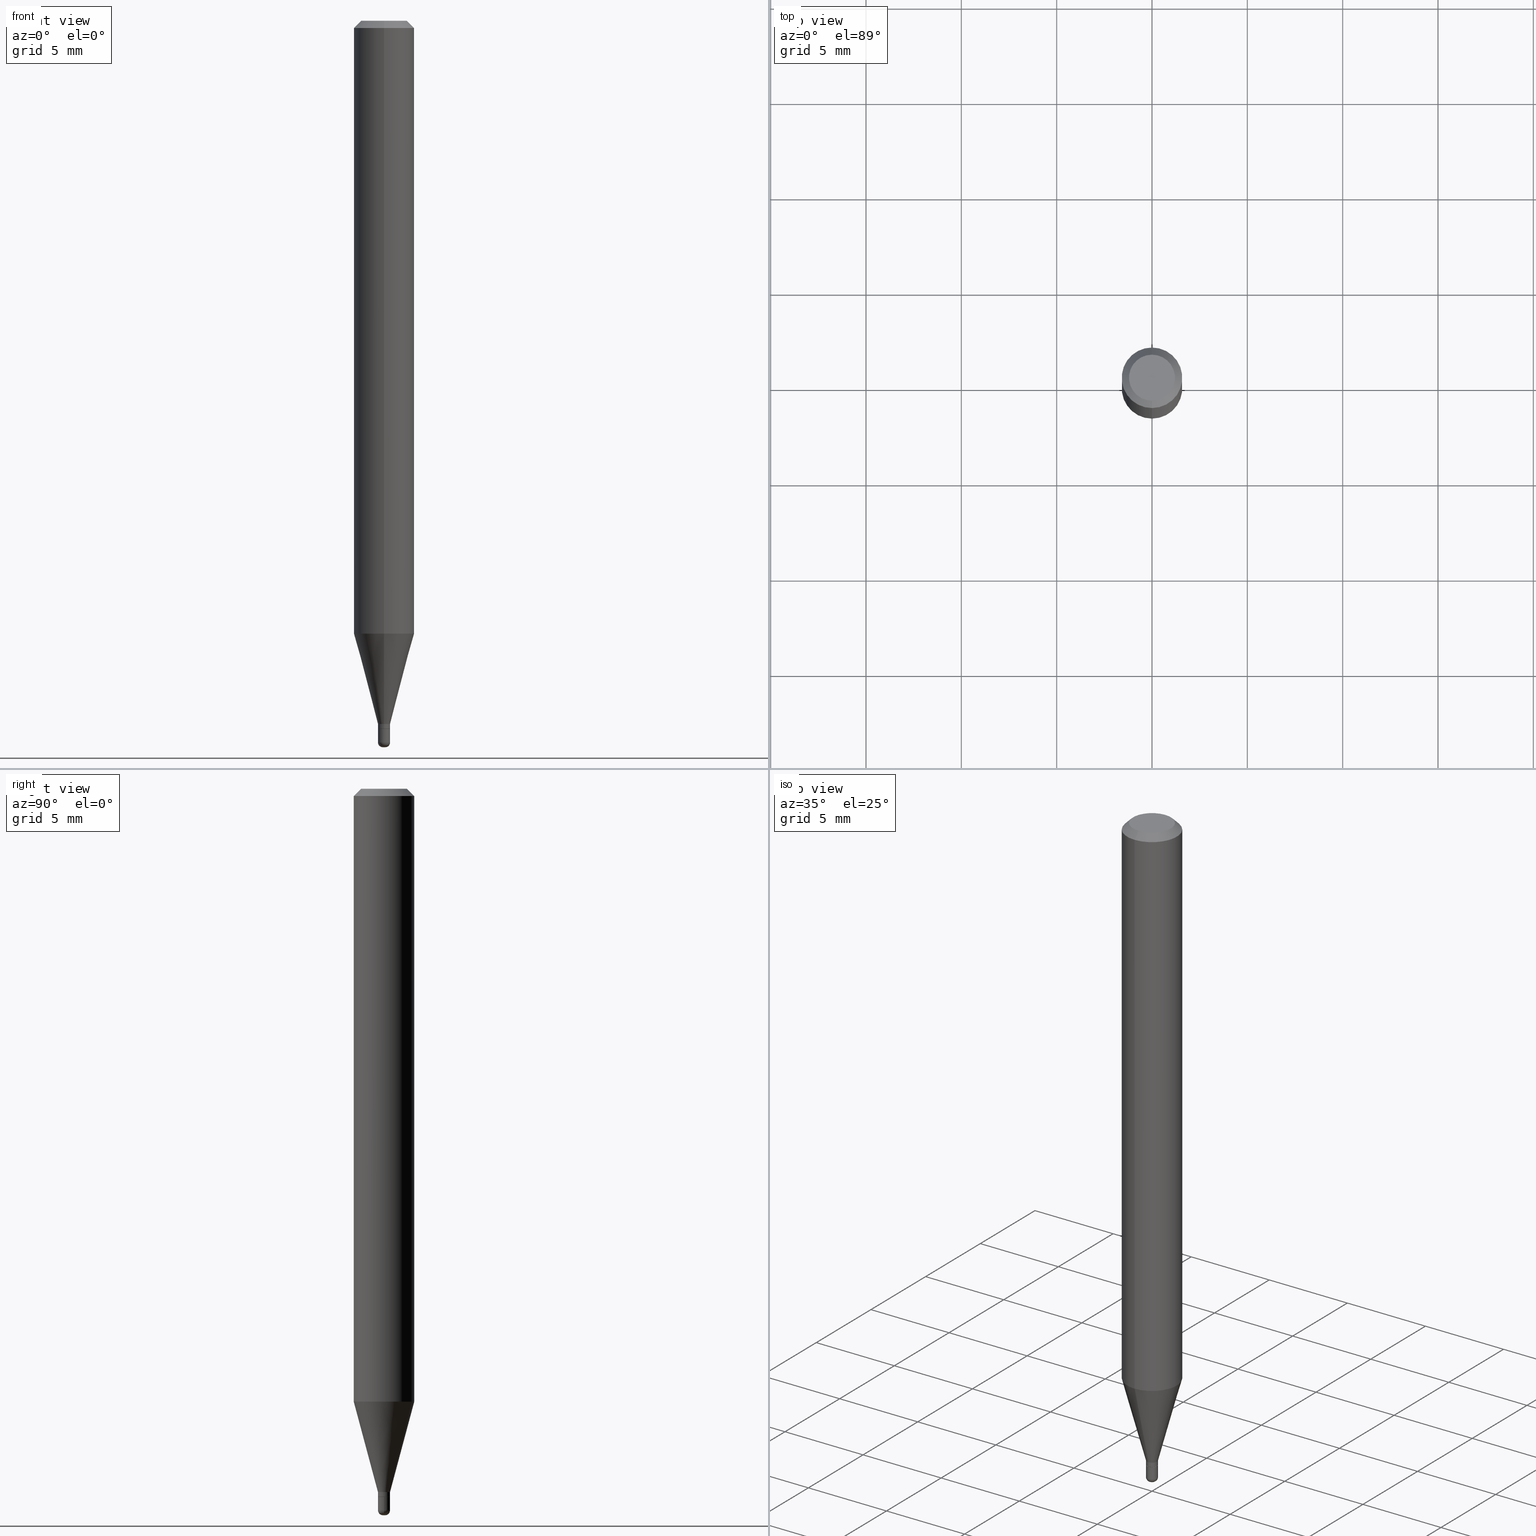
[diagram: canonical four-view strip — front | top / right | iso, engineering-drawing reading convention]
A machine part, canonical four-view strip (front | top / right | iso — engineering-drawing reading convention). The complete STEP part file that produces these views, byte-faithful:
ISO-10303-21;
HEADER;
FILE_DESCRIPTION (( 'STEP AP203' ),
    '1' );
FILE_NAME ('08990.STEP',
    '2024-02-29T21:05:07',
    ( '' ),
    ( '' ),
    'SwSTEP 2.0',
    'SolidWorks 2023',
    '' );
FILE_SCHEMA (( 'CONFIG_CONTROL_DESIGN' ));
ENDSEC;

DATA;
#1 = LINE ( 'NONE', #403, #355 ) ;
#2 = ORIENTED_EDGE ( 'NONE', *, *, #493, .T. ) ;
#3 = EDGE_CURVE ( 'NONE', #402, #494, #344, .T. ) ;
#4 = AXIS2_PLACEMENT_3D ( 'NONE', #393, #263, #195 ) ;
#5 = DIRECTION ( 'NONE',  ( -6.982962677686265922E-15, -1.000000000000000000, 3.491659503082930455E-15 ) ) ;
#6 = CC_DESIGN_SECURITY_CLASSIFICATION ( #499, ( #92 ) ) ;
#7 = VERTEX_POINT ( 'NONE', #469 ) ;
#8 = DIRECTION ( 'NONE',  ( -6.982962677686265922E-15, -1.000000000000000000, 0.000000000000000000 ) ) ;
#9 = VERTEX_POINT ( 'NONE', #20 ) ;
#10 = PERSON_AND_ORGANIZATION_ROLE ( 'design_owner' ) ;
#11 = ORIENTED_EDGE ( 'NONE', *, *, #303, .F. ) ;
#12 = CARTESIAN_POINT ( 'NONE',  ( 3.643748521215853910E-29, -5.202307194876288105E-15, -1.490000000000000213 ) ) ;
#13 = ORIENTED_EDGE ( 'NONE', *, *, #32, .F. ) ;
#14 = AXIS2_PLACEMENT_3D ( 'NONE', #428, #350, #35 ) ;
#15 = CONICAL_SURFACE ( 'NONE', #154, 0.01250000000000004580, 0.2617993877991491858 ) ;
#16 = CC_DESIGN_DATE_AND_TIME_ASSIGNMENT ( #93, #502, ( #194 ) ) ;
#17 = VERTEX_POINT ( 'NONE', #217 ) ;
#18 = CARTESIAN_POINT ( 'NONE',  ( -4.364351673553607559E-16, -0.06250000000000442701, -1.265397459621556253 ) ) ;
#19 = APPROVAL_ROLE ( '' ) ;
#20 = CARTESIAN_POINT ( 'NONE',  ( 4.440892098500936776E-16, 0.06249999999999993755, -0.01499999999999992138 ) ) ;
#21 = APPROVAL_ROLE ( '' ) ;
#22 = AXIS2_PLACEMENT_3D ( 'NONE', #276, #365, #8 ) ;
#23 = LOCAL_TIME ( 16, 5, 7.000000000000000000, #296 ) ;
#24 = CYLINDRICAL_SURFACE ( 'NONE', #241, 0.06250000000000000000 ) ;
#25 = ORIENTED_EDGE ( 'NONE', *, *, #233, .F. ) ;
#26 = SHAPE_DEFINITION_REPRESENTATION ( #305, #328 ) ;
#27 = CARTESIAN_POINT ( 'NONE',  ( 0.01250000000000004406, -8.728703347107864203E-17, 6.095220969744940761E-31 ) ) ;
#28 = AXIS2_PLACEMENT_3D ( 'NONE', #36, #199, #405 ) ;
#29 = DIRECTION ( 'NONE',  ( -2.445344394761444786E-29, 3.491659503082930455E-15, 1.000000000000000000 ) ) ;
#30 = DIRECTION ( 'NONE',  ( -2.445468806185136597E-29, 3.491481338843145583E-15, 1.000000000000000000 ) ) ;
#31 = CARTESIAN_POINT ( 'NONE',  ( -8.728703347104319259E-17, -0.01250000000000519099, -1.461999999999999522 ) ) ;
#32 = EDGE_CURVE ( 'NONE', #494, #402, #513, .T. ) ;
#33 = CONICAL_SURFACE ( 'NONE', #126, 0.01250000000000004580, 0.2617993877991491858 ) ;
#34 = AXIS2_PLACEMENT_3D ( 'NONE', #370, #282, #85 ) ;
#35 = DIRECTION ( 'NONE',  ( -6.982962677686265922E-15, -1.000000000000000000, 3.483106191921935554E-15 ) ) ;
#36 = CARTESIAN_POINT ( 'NONE',  ( 0.000000000000000000, 0.000000000000000000, 0.000000000000000000 ) ) ;
#37 = ORIENTED_EDGE ( 'NONE', *, *, #147, .F. ) ;
#38 = DIRECTION ( 'NONE',  ( -2.445468806185136597E-29, 3.491481338843145583E-15, 1.000000000000000000 ) ) ;
#39 = ORIENTED_EDGE ( 'NONE', *, *, #267, .T. ) ;
#40 = VECTOR ( 'NONE', #274, 39.37007874015748143 ) ;
#41 = DIRECTION ( 'NONE',  ( -6.982962677686265922E-15, -1.000000000000000000, 3.491659503082930850E-15 ) ) ;
#42 = EDGE_LOOP ( 'NONE', ( #205, #39, #361, #317 ) ) ;
#43 = CARTESIAN_POINT ( 'NONE',  ( -4.364351673553912750E-16, -0.06250000000000005551, -0.01499999999999948597 ) ) ;
#44 = UNCERTAINTY_MEASURE_WITH_UNIT (LENGTH_MEASURE( 1.000000000000000082E-05 ), #330, 'distance_accuracy_value', 'NONE');
#45 = ORIENTED_EDGE ( 'NONE', *, *, #249, .T. ) ;
#46 = DIRECTION ( 'NONE',  ( 5.024295867785821236E-15, 0.7071067811862346009, 0.7071067811868604336 ) ) ;
#47 = ORIENTED_EDGE ( 'NONE', *, *, #277, .F. ) ;
#48 = AXIS2_PLACEMENT_3D ( 'NONE', #253, #262, #219 ) ;
#49 = DIRECTION ( 'NONE',  ( 1.000000000000000000, -6.982962677686245411E-15, 4.883557194083105614E-29 ) ) ;
#50 = ORIENTED_EDGE ( 'NONE', *, *, #439, .T. ) ;
#51 = AXIS2_PLACEMENT_3D ( 'NONE', #145, #30, #273 ) ;
#52 = CC_DESIGN_APPROVAL ( #465, ( #194 ) ) ;
#53 = CARTESIAN_POINT ( 'NONE',  ( -0.01250000000000000069, -5.065481484497181788E-15, -1.462500000000000133 ) ) ;
#54 = CARTESIAN_POINT ( 'NONE',  ( 3.643748521215853910E-29, -5.202307194876288105E-15, -1.490000000000000213 ) ) ;
#55 = PERSON_AND_ORGANIZATION ( #98, #292 ) ;
#56 = PERSON_AND_ORGANIZATION ( #98, #292 ) ;
#57 = CYLINDRICAL_SURFACE ( 'NONE', #415, 0.01250000000000004406 ) ;
#58 = EDGE_CURVE ( 'NONE', #17, #278, #284, .T. ) ;
#59 = CARTESIAN_POINT ( 'NONE',  ( 8.728703347111407914E-17, 0.01249999999999489367, -1.462500000000000133 ) ) ;
#60 = COORDINATED_UNIVERSAL_TIME_OFFSET ( 5, 0, .BEHIND. ) ;
#61 = ORIENTED_EDGE ( 'NONE', *, *, #3, .T. ) ;
#62 = PRODUCT_RELATED_PRODUCT_CATEGORY ( 'detail', '', ( #229 ) ) ;
#63 = VECTOR ( 'NONE', #46, 39.37007874015748143 ) ;
#64 = LOCAL_TIME ( 16, 5, 7.000000000000000000, #60 ) ;
#65 = DIRECTION ( 'NONE',  ( 1.000000000000000000, -6.982962677686294321E-15, 0.000000000000000000 ) ) ;
#66 = DATE_AND_TIME ( #426, #251 ) ;
#67 = EDGE_CURVE ( 'NONE', #165, #477, #420, .T. ) ;
#68 = DIRECTION ( 'NONE',  ( -6.982962677686265922E-15, -1.000000000000000000, 4.370956789862821150E-15 ) ) ;
#69 = ADVANCED_FACE ( 'NONE', ( #462 ), #501, .F. ) ;
#70 = DIRECTION ( 'NONE',  ( -6.982962677686265922E-15, -1.000000000000000000, 0.000000000000000000 ) ) ;
#71 = VECTOR ( 'NONE', #453, 39.37007874015748143 ) ;
#72 = DIRECTION ( 'NONE',  ( -6.982962677686266711E-15, -1.000000000000000000, 3.491481338843145583E-15 ) ) ;
#73 = ORIENTED_EDGE ( 'NONE', *, *, #461, .T. ) ;
#74 = CARTESIAN_POINT ( 'NONE',  ( 0.002500000000000003955, -5.254679414958934790E-15, -1.500000000000000444 ) ) ;
#75 = DIRECTION ( 'NONE',  ( -6.982962677686265922E-15, -1.000000000000000000, 3.491659503082930455E-15 ) ) ;
#76 = CYLINDRICAL_SURFACE ( 'NONE', #269, 0.01250000000000004580 ) ;
#77 = CARTESIAN_POINT ( 'NONE',  ( 0.000000000000000000, 0.000000000000000000, 0.000000000000000000 ) ) ;
#78 = ORIENTED_EDGE ( 'NONE', *, *, #363, .T. ) ;
#79 = DIRECTION ( 'NONE',  ( -6.982962677686265922E-15, -1.000000000000000000, 0.000000000000000000 ) ) ;
#80 = ORIENTED_EDGE ( 'NONE', *, *, #265, .F. ) ;
#81 = CLOSED_SHELL ( 'NONE', ( #496, #120, #337, #105, #247, #488, #485, #332, #121, #400, #212, #340 ) ) ;
#82 = CONICAL_SURFACE ( 'NONE', #4, 0.06250000000000000000, 0.7853981633974488341 ) ;
#83 = CARTESIAN_POINT ( 'NONE',  ( 3.094332585030945656E-29, -4.418337065064606585E-15, -1.265397459621556697 ) ) ;
#84 = ORIENTED_EDGE ( 'NONE', *, *, #411, .T. ) ;
#85 = DIRECTION ( 'NONE',  ( 1.000000000000000000, -6.982962677686265922E-15, 4.876176775795935793E-29 ) ) ;
#86 = ORIENTED_EDGE ( 'NONE', *, *, #177, .F. ) ;
#87 = DIRECTION ( 'NONE',  ( -2.445344394761444786E-29, 3.491659503082930455E-15, 1.000000000000000000 ) ) ;
#88 = VERTEX_POINT ( 'NONE', #504 ) ;
#89 = LENGTH_MEASURE_WITH_UNIT ( LENGTH_MEASURE( 0.02539999999999999897 ), #255 );
#90 = AXIS2_PLACEMENT_3D ( 'NONE', #357, #112, #235 ) ;
#91 = DIRECTION ( 'NONE',  ( -2.445344394761444786E-29, 3.491659503082930455E-15, 1.000000000000000000 ) ) ;
#92 = PRODUCT_DEFINITION_FORMATION_WITH_SPECIFIED_SOURCE ( 'ANY', '', #229, .NOT_KNOWN. ) ;
#93 = DATE_AND_TIME ( #470, #64 ) ;
#94 = DIRECTION ( 'NONE',  ( 1.000000000000000000, -6.982962677686266711E-15, 4.876176775795935232E-29 ) ) ;
#95 = EDGE_LOOP ( 'NONE', ( #73, #238, #294, #125 ) ) ;
#96 = FACE_OUTER_BOUND ( 'NONE', #412, .T. ) ;
#97 = DIRECTION ( 'NONE',  ( -1.000000000000000000, 6.982962677686265922E-15, -4.876176775795935793E-29 ) ) ;
#98 = PERSON ( 'UNSPECIFIED', 'UNSPECIFIED', 'UNSPECIFIED', ('UNSPECIFIED'), ('UNSPECIFIED'), ('UNSPECIFIED') ) ;
#99 = DIRECTION ( 'NONE',  ( -2.445468806185136597E-29, 3.491481338843145583E-15, 1.000000000000000000 ) ) ;
#100 = COORDINATED_UNIVERSAL_TIME_OFFSET ( 5, 0, .BEHIND. ) ;
#101 = AXIS2_PLACEMENT_3D ( 'NONE', #331, #478, #197 ) ;
#102 = APPROVAL_PERSON_ORGANIZATION ( #339, #443, #19 ) ;
#103 = DIRECTION ( 'NONE',  ( 1.000000000000000000, -6.982962677686246200E-15, 0.000000000000000000 ) ) ;
#104 = CC_DESIGN_PERSON_AND_ORGANIZATION_ASSIGNMENT ( #261, #218, ( #92 ) ) ;
#105 = ADVANCED_FACE ( 'NONE', ( #216 ), #24, .T. ) ;
#106 = CARTESIAN_POINT ( 'NONE',  ( 0.002500000000000000919, -5.219764601570503141E-15, -1.490000000000000213 ) ) ;
#107 = LINE ( 'NONE', #304, #491 ) ;
#108 = ORIENTED_EDGE ( 'NONE', *, *, #158, .T. ) ;
#109 = CIRCLE ( 'NONE', #101, 0.002500000000000003955 ) ;
#110 = VECTOR ( 'NONE', #416, 39.37007874015748143 ) ;
#111 = CARTESIAN_POINT ( 'NONE',  ( -6.680516123286629518E-45, 9.538978500264815193E-31, 2.731932621678161082E-16 ) ) ;
#112 = DIRECTION ( 'NONE',  ( 7.105427357601001859E-15, 1.000000000000000000, -3.491481338843145583E-15 ) ) ;
#113 = EDGE_LOOP ( 'NONE', ( #358, #84, #11, #246 ) ) ;
#114 = DIRECTION ( 'NONE',  ( -2.445344394761445067E-29, 3.491659503082930850E-15, 1.000000000000000000 ) ) ;
#115 = AXIS2_PLACEMENT_3D ( 'NONE', #141, #341, #256 ) ;
#116 = AXIS2_PLACEMENT_3D ( 'NONE', #427, #91, #68 ) ;
#117 = AXIS2_PLACEMENT_3D ( 'NONE', #483, #38, #124 ) ;
#118 = FACE_OUTER_BOUND ( 'NONE', #198, .T. ) ;
#119 = VERTEX_POINT ( 'NONE', #260 ) ;
#120 = ADVANCED_FACE ( 'NONE', ( #258 ), #379, .T. ) ;
#121 = ADVANCED_FACE ( 'NONE', ( #181 ), #336, .F. ) ;
#122 = FACE_OUTER_BOUND ( 'NONE', #366, .T. ) ;
#123 = EDGE_LOOP ( 'NONE', ( #200, #422, #2, #271 ) ) ;
#124 = DIRECTION ( 'NONE',  ( 1.000000000000000000, -6.982962677686246200E-15, 0.000000000000000000 ) ) ;
#125 = ORIENTED_EDGE ( 'NONE', *, *, #158, .F. ) ;
#126 = AXIS2_PLACEMENT_3D ( 'NONE', #475, #224, #70 ) ;
#127 = CARTESIAN_POINT ( 'NONE',  ( 3.576316177338612825E-29, -5.106552023258785732E-15, -1.462500000000000133 ) ) ;
#128 = APPROVAL_PERSON_ORGANIZATION ( #348, #394, #384 ) ;
#129 = VERTEX_POINT ( 'NONE', #338 ) ;
#130 = CARTESIAN_POINT ( 'NONE',  ( 0.01250000000000000069, -5.193578491529179010E-15, -1.462500000000000133 ) ) ;
#131 = ORIENTED_EDGE ( 'NONE', *, *, #147, .T. ) ;
#132 =( NAMED_UNIT ( * ) PLANE_ANGLE_UNIT ( ) SI_UNIT ( $, .RADIAN. ) );
#133 = CARTESIAN_POINT ( 'NONE',  ( 3.550640061193618917E-29, -5.069889598476417028E-15, -1.452000000000000624 ) ) ;
#134 = DIRECTION ( 'NONE',  ( 0.000000000000000000, 0.000000000000000000, 1.000000000000000000 ) ) ;
#135 = AXIS2_PLACEMENT_3D ( 'NONE', #12, #171, #325 ) ;
#136 = CARTESIAN_POINT ( 'NONE',  ( -4.364351673553916201E-16, -0.06250000000000000000, 2.182287189426831535E-16 ) ) ;
#137 = APPROVAL_STATUS ( 'not_yet_approved' ) ;
#138 = CARTESIAN_POINT ( 'NONE',  ( 0.000000000000000000, 0.000000000000000000, 0.000000000000000000 ) ) ;
#139 = DIRECTION ( 'NONE',  ( 2.445344394761444506E-29, -3.491659503082930850E-15, -1.000000000000000000 ) ) ;
#140 = APPROVAL_STATUS ( 'not_yet_approved' ) ;
#141 = CARTESIAN_POINT ( 'NONE',  ( 3.575093505141231095E-29, -5.104806193507243351E-15, -1.461999999999999522 ) ) ;
#142 = EDGE_CURVE ( 'NONE', #119, #7, #299, .T. ) ;
#143 = DIRECTION ( 'NONE',  ( -6.982962677686265922E-15, -1.000000000000000000, 3.483106191921935554E-15 ) ) ;
#144 = AXIS2_PLACEMENT_3D ( 'NONE', #133, #456, #417 ) ;
#145 = CARTESIAN_POINT ( 'NONE',  ( 3.668203209277706016E-29, -5.237222008264719754E-15, -1.500000000000000444 ) ) ;
#146 = COORDINATED_UNIVERSAL_TIME_OFFSET ( 5, 0, .BEHIND. ) ;
#147 = EDGE_CURVE ( 'NONE', #477, #9, #468, .T. ) ;
#148 = DIRECTION ( 'NONE',  ( 1.000000000000000000, -6.982962677686273021E-15, 0.000000000000000000 ) ) ;
#149 = ORIENTED_EDGE ( 'NONE', *, *, #243, .T. ) ;
#150 = EDGE_CURVE ( 'NONE', #165, #487, #450, .T. ) ;
#151 = CARTESIAN_POINT ( 'NONE',  ( -3.773273898774340269E-16, -0.04750000000000000749, 4.390470885642552910E-16 ) ) ;
#152 = AXIS2_PLACEMENT_3D ( 'NONE', #297, #99, #65 ) ;
#153 = TOROIDAL_SURFACE ( 'NONE', #135, 0.002500000000000000919, 0.01000000000000008521 ) ;
#154 = AXIS2_PLACEMENT_3D ( 'NONE', #279, #446, #79 ) ;
#155 = CC_DESIGN_PERSON_AND_ORGANIZATION_ASSIGNMENT ( #56, #10, ( #229 ) ) ;
#156 = CARTESIAN_POINT ( 'NONE',  ( -8.728703347107864203E-17, -0.01250000000000004580, 4.364574378853679216E-17 ) ) ;
#157 = ORIENTED_EDGE ( 'NONE', *, *, #267, .F. ) ;
#158 = EDGE_CURVE ( 'NONE', #7, #402, #387, .T. ) ;
#159 = CARTESIAN_POINT ( 'NONE',  ( 8.881784197004833505E-17, 0.01249999999999497693, -1.452000000000000624 ) ) ;
#160 = ORIENTED_EDGE ( 'NONE', *, *, #407, .F. ) ;
#161 = CARTESIAN_POINT ( 'NONE',  ( 3.576316177338612825E-29, -5.106552023258785732E-15, -1.462500000000000133 ) ) ;
#162 = EDGE_CURVE ( 'NONE', #368, #228, #414, .T. ) ;
#163 = VECTOR ( 'NONE', #222, 39.37007874015748854 ) ;
#164 = CARTESIAN_POINT ( 'NONE',  ( -6.680516123286629518E-45, 9.538978500264815193E-31, 2.731932621678161082E-16 ) ) ;
#165 = VERTEX_POINT ( 'NONE', #18 ) ;
#166 = CARTESIAN_POINT ( 'NONE',  ( 3.643748521215853910E-29, -5.202307194876288105E-15, -1.490000000000000213 ) ) ;
#167 = ORIENTED_EDGE ( 'NONE', *, *, #277, .T. ) ;
#168 = FACE_OUTER_BOUND ( 'NONE', #326, .T. ) ;
#169 = EDGE_LOOP ( 'NONE', ( #351, #78, #409, #80 ) ) ;
#170 = AXIS2_PLACEMENT_3D ( 'NONE', #460, #213, #377 ) ;
#171 = DIRECTION ( 'NONE',  ( -2.445468806185136597E-29, 3.491481338843145583E-15, 1.000000000000000000 ) ) ;
#172 = AXIS2_PLACEMENT_3D ( 'NONE', #252, #134, #293 ) ;
#173 = ORIENTED_EDGE ( 'NONE', *, *, #318, .T. ) ;
#174 = DIRECTION ( 'NONE',  ( -2.445468806185136597E-29, 3.491481338843145583E-15, 1.000000000000000000 ) ) ;
#175 = ORIENTED_EDGE ( 'NONE', *, *, #439, .F. ) ;
#176 = DIRECTION ( 'NONE',  ( -2.445344394761444786E-29, 3.491659503082930455E-15, 1.000000000000000000 ) ) ;
#177 = EDGE_CURVE ( 'NONE', #497, #300, #109, .T. ) ;
#178 = CARTESIAN_POINT ( 'NONE',  ( 3.668016592142094662E-31, -5.237489254624291677E-17, -0.01499999999999970281 ) ) ;
#179 = COORDINATED_UNIVERSAL_TIME_OFFSET ( 5, 0, .BEHIND. ) ;
#180 = CIRCLE ( 'NONE', #474, 0.01250000000000004406 ) ;
#181 = FACE_OUTER_BOUND ( 'NONE', #289, .T. ) ;
#182 = AXIS2_PLACEMENT_3D ( 'NONE', #376, #176, #215 ) ;
#183 = SECURITY_CLASSIFICATION_LEVEL ( 'unclassified' ) ;
#184 = EDGE_LOOP ( 'NONE', ( #25, #50, #131, #329 ) ) ;
#185 = PERSON_AND_ORGANIZATION_ROLE ( 'creator' ) ;
#186 = CC_DESIGN_PERSON_AND_ORGANIZATION_ASSIGNMENT ( #505, #382, ( #499 ) ) ;
#187 = CARTESIAN_POINT ( 'NONE',  ( 3.316907271900976589E-16, 0.04750000000000000749, -2.925719531253115952E-17 ) ) ;
#188 = ORIENTED_EDGE ( 'NONE', *, *, #385, .T. ) ;
#189 = AXIS2_PLACEMENT_3D ( 'NONE', #106, #72, #148 ) ;
#190 = APPLICATION_PROTOCOL_DEFINITION ( 'international standard', 'config_control_design', 1994, #349 ) ;
#191 = CIRCLE ( 'NONE', #301, 0.01200000000000004362 ) ;
#192 = DIRECTION ( 'NONE',  ( 6.982962677686265922E-15, 1.000000000000000000, -3.483106191921935554E-15 ) ) ;
#193 = FACE_OUTER_BOUND ( 'NONE', #42, .T. ) ;
#194 = PRODUCT_DEFINITION ( 'UNKNOWN', '', #92, #232 ) ;
#195 = DIRECTION ( 'NONE',  ( 6.982962677686265922E-15, 1.000000000000000000, -3.483106191921935554E-15 ) ) ;
#196 = CONICAL_SURFACE ( 'NONE', #307, 0.01200000000000004362, 0.7853981633970023024 ) ;
#197 = DIRECTION ( 'NONE',  ( 1.000000000000000000, -6.982962677686127871E-15, 0.000000000000000000 ) ) ;
#198 = EDGE_LOOP ( 'NONE', ( #311, #404, #373, #511 ) ) ;
#199 = DIRECTION ( 'NONE',  ( -2.445468806185136597E-29, 3.491481338843145583E-15, 1.000000000000000000 ) ) ;
#200 = ORIENTED_EDGE ( 'NONE', *, *, #411, .F. ) ;
#201 = PLANE ( 'NONE',  #413 ) ;
#202 = ORIENTED_EDGE ( 'NONE', *, *, #265, .T. ) ;
#203 = AXIS2_PLACEMENT_3D ( 'NONE', #127, #87, #313 ) ;
#204 =( GEOMETRIC_REPRESENTATION_CONTEXT ( 3 ) GLOBAL_UNCERTAINTY_ASSIGNED_CONTEXT ( ( #44 ) ) GLOBAL_UNIT_ASSIGNED_CONTEXT ( ( #330, #132, #500 ) ) REPRESENTATION_CONTEXT ( 'NONE', 'WORKASPACE' ) );
#205 = ORIENTED_EDGE ( 'NONE', *, *, #162, .T. ) ;
#206 = DIRECTION ( 'NONE',  ( -2.445344394761444786E-29, 3.491659503082930455E-15, 1.000000000000000000 ) ) ;
#207 = ORIENTED_EDGE ( 'NONE', *, *, #303, .T. ) ;
#208 = CARTESIAN_POINT ( 'NONE',  ( -4.287811248607203282E-16, -0.06250000000000005551, -0.01499999999999948597 ) ) ;
#209 = ORIENTED_EDGE ( 'NONE', *, *, #249, .F. ) ;
#210 = CYLINDRICAL_SURFACE ( 'NONE', #182, 0.01250000000000004580 ) ;
#211 = ORIENTED_EDGE ( 'NONE', *, *, #58, .T. ) ;
#212 = ADVANCED_FACE ( 'NONE', ( #312 ), #196, .T. ) ;
#213 = DIRECTION ( 'NONE',  ( -2.445344394761444786E-29, 3.491659503082930455E-15, 1.000000000000000000 ) ) ;
#214 = CALENDAR_DATE ( 2024, 29, 2 ) ;
#215 = DIRECTION ( 'NONE',  ( -6.982962677686265922E-15, -1.000000000000000000, 3.491659503082930455E-15 ) ) ;
#216 = FACE_OUTER_BOUND ( 'NONE', #290, .T. ) ;
#217 = CARTESIAN_POINT ( 'NONE',  ( 8.881784197004827342E-17, 0.01249999999999489540, -1.461999999999999522 ) ) ;
#218 = PERSON_AND_ORGANIZATION_ROLE ( 'design_supplier' ) ;
#219 = DIRECTION ( 'NONE',  ( 1.000000000000000000, -6.982962677686294321E-15, 0.000000000000000000 ) ) ;
#220 = APPROVAL_DATE_TIME ( #66, #443 ) ;
#221 = CARTESIAN_POINT ( 'NONE',  ( 0.000000000000000000, 0.000000000000000000, 0.000000000000000000 ) ) ;
#222 = DIRECTION ( 'NONE',  ( 1.839019923739592821E-15, 0.2588190451025239036, 0.9659258262890675351 ) ) ;
#223 = CIRCLE ( 'NONE', #203, 0.01200000000000004362 ) ;
#224 = DIRECTION ( 'NONE',  ( -2.445344394761444786E-29, 3.491659503082930455E-15, 1.000000000000000000 ) ) ;
#225 = DIMENSIONAL_EXPONENTS ( 1.000000000000000000, 0.000000000000000000, 0.000000000000000000, 0.000000000000000000, 0.000000000000000000, 0.000000000000000000, 0.000000000000000000 ) ;
#226 = EDGE_CURVE ( 'NONE', #119, #494, #515, .T. ) ;
#227 = LINE ( 'NONE', #156, #259 ) ;
#228 = VERTEX_POINT ( 'NONE', #471 ) ;
#229 = PRODUCT ( '08990', '08990', '', ( #380 ) ) ;
#230 = MANIFOLD_SOLID_BREP ( 'Body-Move/Copy2[2]', #81 ) ;
#231 = CYLINDRICAL_SURFACE ( 'NONE', #28, 0.01250000000000004406 ) ;
#232 = DESIGN_CONTEXT ( 'detailed design', #349, 'design' ) ;
#233 = EDGE_CURVE ( 'NONE', #250, #129, #507, .T. ) ;
#234 = AXIS2_PLACEMENT_3D ( 'NONE', #111, #432, #508 ) ;
#235 = DIRECTION ( 'NONE',  ( -1.000000000000000000, 7.105427357600962416E-15, 0.000000000000000000 ) ) ;
#236 = MANIFOLD_SOLID_BREP ( 'Body-Move/Copy2[1]', #473 ) ;
#237 = DIRECTION ( 'NONE',  ( -6.982962677686265133E-15, -1.000000000000000000, 3.491659503082930061E-15 ) ) ;
#238 = ORIENTED_EDGE ( 'NONE', *, *, #226, .T. ) ;
#239 = CARTESIAN_POINT ( 'NONE',  ( 3.576316177338612825E-29, -5.106552023258785732E-15, -1.462500000000000133 ) ) ;
#240 = EDGE_LOOP ( 'NONE', ( #47, #211, #173, #160 ) ) ;
#241 = AXIS2_PLACEMENT_3D ( 'NONE', #221, #383, #466 ) ;
#242 = DIRECTION ( 'NONE',  ( -6.982962677686265922E-15, -1.000000000000000000, 4.370956789862821150E-15 ) ) ;
#243 = EDGE_CURVE ( 'NONE', #497, #119, #314, .T. ) ;
#244 = ORIENTED_EDGE ( 'NONE', *, *, #67, .F. ) ;
#245 = LINE ( 'NONE', #408, #71 ) ;
#246 = ORIENTED_EDGE ( 'NONE', *, *, #493, .F. ) ;
#247 = ADVANCED_FACE ( 'NONE', ( #193 ), #33, .T. ) ;
#248 = FACE_OUTER_BOUND ( 'NONE', #169, .T. ) ;
#249 = EDGE_CURVE ( 'NONE', #300, #497, #275, .T. ) ;
#250 = VERTEX_POINT ( 'NONE', #151 ) ;
#251 = LOCAL_TIME ( 16, 5, 7.000000000000000000, #179 ) ;
#252 = CARTESIAN_POINT ( 'NONE',  ( 0.000000000000000000, 0.000000000000000000, 0.000000000000000000 ) ) ;
#253 = CARTESIAN_POINT ( 'NONE',  ( 3.576498129045762161E-29, -5.106291458058100676E-15, -1.462500000000000133 ) ) ;
#254 = CALENDAR_DATE ( 2024, 29, 2 ) ;
#255 =( LENGTH_UNIT ( ) NAMED_UNIT ( * ) SI_UNIT ( $, .METRE. ) );
#256 = DIRECTION ( 'NONE',  ( -6.982962677686265922E-15, -1.000000000000000000, 0.000000000000000000 ) ) ;
#257 = CARTESIAN_POINT ( 'NONE',  ( -8.379555213219975405E-17, -0.01200000000000515238, -1.462500000000000133 ) ) ;
#258 = FACE_OUTER_BOUND ( 'NONE', #113, .T. ) ;
#259 = VECTOR ( 'NONE', #114, 39.37007874015748143 ) ;
#260 = CARTESIAN_POINT ( 'NONE',  ( -0.01250000000000008570, -5.065481484497181788E-15, -1.490000000000000213 ) ) ;
#261 = PERSON_AND_ORGANIZATION ( #98, #292 ) ;
#262 = DIRECTION ( 'NONE',  ( -2.445468806185136597E-29, 3.491481338843145583E-15, 1.000000000000000000 ) ) ;
#263 = DIRECTION ( 'NONE',  ( 2.445344394761444786E-29, -3.491659503082930455E-15, -1.000000000000000000 ) ) ;
#264 = APPLICATION_CONTEXT ( 'configuration controlled 3d designs of mechanical parts and assemblies' ) ;
#265 = EDGE_CURVE ( 'NONE', #9, #477, #388, .T. ) ;
#266 = EDGE_CURVE ( 'NONE', #300, #7, #345, .T. ) ;
#267 = EDGE_CURVE ( 'NONE', #228, #487, #517, .T. ) ;
#268 = FACE_OUTER_BOUND ( 'NONE', #397, .T. ) ;
#269 = AXIS2_PLACEMENT_3D ( 'NONE', #476, #436, #75 ) ;
#270 = CC_DESIGN_APPROVAL ( #443, ( #499 ) ) ;
#271 = ORIENTED_EDGE ( 'NONE', *, *, #58, .F. ) ;
#272 = DIRECTION ( 'NONE',  ( -2.445344394761445067E-29, 3.491659503082930850E-15, 1.000000000000000000 ) ) ;
#273 = DIRECTION ( 'NONE',  ( 1.000000000000000000, -6.982962677686127871E-15, 0.000000000000000000 ) ) ;
#274 = DIRECTION ( 'NONE',  ( -2.445468806185136877E-29, 3.491481338843145188E-15, 1.000000000000000000 ) ) ;
#275 = CIRCLE ( 'NONE', #51, 0.002500000000000003955 ) ;
#276 = CARTESIAN_POINT ( 'NONE',  ( 3.550640061193618917E-29, -5.069889598476417028E-15, -1.452000000000000624 ) ) ;
#277 = EDGE_CURVE ( 'NONE', #17, #228, #107, .T. ) ;
#278 = VERTEX_POINT ( 'NONE', #31 ) ;
#279 = CARTESIAN_POINT ( 'NONE',  ( 3.550640061193618917E-29, -5.069889598476417028E-15, -1.452000000000000624 ) ) ;
#280 = ORIENTED_EDGE ( 'NONE', *, *, #266, .F. ) ;
#281 = EDGE_CURVE ( 'NONE', #368, #165, #512, .T. ) ;
#282 = DIRECTION ( 'NONE',  ( -2.438088387897960049E-29, 3.491481338843145188E-15, 1.000000000000000000 ) ) ;
#283 = ORIENTED_EDGE ( 'NONE', *, *, #150, .T. ) ;
#284 = CIRCLE ( 'NONE', #115, 0.01250000000000004406 ) ;
#285 = VECTOR ( 'NONE', #295, 39.37007874015748143 ) ;
#286 = DIRECTION ( 'NONE',  ( -2.445344394761444786E-29, 3.491659503082930455E-15, 1.000000000000000000 ) ) ;
#287 = ORIENTED_EDGE ( 'NONE', *, *, #162, .F. ) ;
#288 = PLANE ( 'NONE',  #34 ) ;
#289 = EDGE_LOOP ( 'NONE', ( #447, #320 ) ) ;
#290 = EDGE_LOOP ( 'NONE', ( #283, #188, #37, #244 ) ) ;
#291 = AXIS2_PLACEMENT_3D ( 'NONE', #178, #506, #143 ) ;
#292 = ORGANIZATION ( 'UNSPECIFIED', 'UNSPECIFIED', '' ) ;
#293 = DIRECTION ( 'NONE',  ( 1.000000000000000000, 0.000000000000000000, 0.000000000000000000 ) ) ;
#294 = ORIENTED_EDGE ( 'NONE', *, *, #3, .F. ) ;
#295 = DIRECTION ( 'NONE',  ( -2.445344394761445067E-29, 3.491659503082930850E-15, 1.000000000000000000 ) ) ;
#296 = COORDINATED_UNIVERSAL_TIME_OFFSET ( 5, 0, .BEHIND. ) ;
#297 = CARTESIAN_POINT ( 'NONE',  ( 3.576498129045762161E-29, -5.106291458058100676E-15, -1.462500000000000133 ) ) ;
#298 = DATE_AND_TIME ( #254, #23 ) ;
#299 = CIRCLE ( 'NONE', #479, 0.01250000000000008570 ) ;
#300 = VERTEX_POINT ( 'NONE', #74 ) ;
#301 = AXIS2_PLACEMENT_3D ( 'NONE', #239, #286, #401 ) ;
#302 = DIRECTION ( 'NONE',  ( -1.807323732225322645E-15, -0.2588190451025171313, 0.9659258262890693114 ) ) ;
#303 = EDGE_CURVE ( 'NONE', #278, #17, #180, .T. ) ;
#304 = CARTESIAN_POINT ( 'NONE',  ( 8.881784197001283631E-17, 0.01250000000000004580, -4.364574378853679216E-17 ) ) ;
#305 = PRODUCT_DEFINITION_SHAPE ( 'NONE', 'NONE',  #194 ) ;
#306 = CARTESIAN_POINT ( 'NONE',  ( -0.01250000000000004406, 8.881784197001283631E-17, -6.148668862818653422E-31 ) ) ;
#307 = AXIS2_PLACEMENT_3D ( 'NONE', #391, #352, #510 ) ;
#308 = LOCAL_TIME ( 16, 5, 7.000000000000000000, #100 ) ;
#309 = CC_DESIGN_PERSON_AND_ORGANIZATION_ASSIGNMENT ( #342, #185, ( #194 ) ) ;
#310 = DIRECTION ( 'NONE',  ( 2.445344394761444786E-29, -3.491659503082930455E-15, -1.000000000000000000 ) ) ;
#311 = ORIENTED_EDGE ( 'NONE', *, *, #243, .F. ) ;
#312 = FACE_OUTER_BOUND ( 'NONE', #123, .T. ) ;
#313 = DIRECTION ( 'NONE',  ( -6.982962677686267499E-15, -1.000000000000000000, 0.000000000000000000 ) ) ;
#314 = CIRCLE ( 'NONE', #90, 0.01000000000000008521 ) ;
#315 = TOROIDAL_SURFACE ( 'NONE', #442, 0.002500000000000000919, 0.01000000000000008521 ) ;
#316 = DIRECTION ( 'NONE',  ( -2.445344394761444786E-29, 3.491659503082930455E-15, 1.000000000000000000 ) ) ;
#317 = ORIENTED_EDGE ( 'NONE', *, *, #281, .F. ) ;
#318 = EDGE_CURVE ( 'NONE', #278, #368, #227, .T. ) ;
#319 = DIRECTION ( 'NONE',  ( -2.445344394761444786E-29, 3.491659503082930455E-15, 1.000000000000000000 ) ) ;
#320 = ORIENTED_EDGE ( 'NONE', *, *, #233, .T. ) ;
#321 = DIRECTION ( 'NONE',  ( -2.445344394761444506E-29, 3.491659503082930850E-15, 1.000000000000000000 ) ) ;
#322 = ORIENTED_EDGE ( 'NONE', *, *, #437, .F. ) ;
#323 = CONICAL_SURFACE ( 'NONE', #424, 0.06250000000000000000, 0.7853981633974488341 ) ;
#324 = LOCAL_TIME ( 16, 5, 7.000000000000000000, #146 ) ;
#325 = DIRECTION ( 'NONE',  ( 1.000000000000000000, -6.982962677686245411E-15, 4.883557194083105614E-29 ) ) ;
#326 = EDGE_LOOP ( 'NONE', ( #454, #322 ) ) ;
#327 = CARTESIAN_POINT ( 'NONE',  ( 8.704148513064816929E-17, 0.01199999999999493659, -1.462500000000000133 ) ) ;
#328 = ADVANCED_BREP_SHAPE_REPRESENTATION ( '08990', ( #236, #230, #172 ), #204 ) ;
#329 = ORIENTED_EDGE ( 'NONE', *, *, #359, .F. ) ;
#330 =( CONVERSION_BASED_UNIT ( 'INCH', #89 ) LENGTH_UNIT ( ) NAMED_UNIT ( #225 ) );
#331 = CARTESIAN_POINT ( 'NONE',  ( 3.668203209277706016E-29, -5.237222008264719754E-15, -1.500000000000000444 ) ) ;
#332 = ADVANCED_FACE ( 'NONE', ( #268 ), #82, .T. ) ;
#333 = VECTOR ( 'NONE', #302, 39.37007874015748854 ) ;
#334 = AXIS2_PLACEMENT_3D ( 'NONE', #77, #206, #5 ) ;
#335 = CARTESIAN_POINT ( 'NONE',  ( -0.002500000000000003955, -5.166473896388495974E-15, -1.500000000000000444 ) ) ;
#336 = PLANE ( 'NONE',  #372 ) ;
#337 = ADVANCED_FACE ( 'NONE', ( #440 ), #323, .T. ) ;
#338 = CARTESIAN_POINT ( 'NONE',  ( 3.840629472727447874E-16, 0.04750000000000000749, 1.073394357713768884E-16 ) ) ;
#339 = PERSON_AND_ORGANIZATION ( #98, #292 ) ;
#340 = ADVANCED_FACE ( 'NONE', ( #398 ), #76, .T. ) ;
#341 = DIRECTION ( 'NONE',  ( -2.445344394761444786E-29, 3.491659503082930455E-15, 1.000000000000000000 ) ) ;
#342 = PERSON_AND_ORGANIZATION ( #98, #292 ) ;
#343 = ADVANCED_FACE ( 'NONE', ( #395 ), #231, .T. ) ;
#344 = CIRCLE ( 'NONE', #152, 0.01250000000000000069 ) ;
#345 = CIRCLE ( 'NONE', #189, 0.01000000000000008521 ) ;
#346 = DIRECTION ( 'NONE',  ( -2.445468806185136877E-29, 3.491481338843145188E-15, 1.000000000000000000 ) ) ;
#347 = CC_DESIGN_APPROVAL ( #394, ( #92 ) ) ;
#348 = PERSON_AND_ORGANIZATION ( #98, #292 ) ;
#349 = APPLICATION_CONTEXT ( 'configuration controlled 3d designs of mechanical parts and assemblies' ) ;
#350 = DIRECTION ( 'NONE',  ( -2.445344394761444786E-29, 3.491659503082930455E-15, 1.000000000000000000 ) ) ;
#351 = ORIENTED_EDGE ( 'NONE', *, *, #385, .F. ) ;
#352 = DIRECTION ( 'NONE',  ( -2.445344394761444786E-29, 3.491659503082930455E-15, 1.000000000000000000 ) ) ;
#353 = ORIENTED_EDGE ( 'NONE', *, *, #226, .F. ) ;
#354 = CARTESIAN_POINT ( 'NONE',  ( 3.668016592142094662E-31, -5.237489254624291677E-17, -0.01499999999999970281 ) ) ;
#355 = VECTOR ( 'NONE', #492, 39.37007874015748143 ) ;
#356 = APPROVAL_PERSON_ORGANIZATION ( #421, #465, #21 ) ;
#357 = CARTESIAN_POINT ( 'NONE',  ( -0.002500000000000000919, -5.184543626482285190E-15, -1.490000000000000213 ) ) ;
#358 = ORIENTED_EDGE ( 'NONE', *, *, #429, .T. ) ;
#359 = EDGE_CURVE ( 'NONE', #129, #9, #245, .T. ) ;
#360 = LINE ( 'NONE', #489, #63 ) ;
#361 = ORIENTED_EDGE ( 'NONE', *, *, #150, .F. ) ;
#362 = DIRECTION ( 'NONE',  ( -4.851104656540966641E-15, -0.7071067811865503483, -0.7071067811865446862 ) ) ;
#363 = EDGE_CURVE ( 'NONE', #487, #165, #430, .T. ) ;
#364 = ORIENTED_EDGE ( 'NONE', *, *, #32, .T. ) ;
#365 = DIRECTION ( 'NONE',  ( -2.445344394761444786E-29, 3.491659503082930455E-15, 1.000000000000000000 ) ) ;
#366 = EDGE_LOOP ( 'NONE', ( #157, #438, #516, #445 ) ) ;
#367 = CARTESIAN_POINT ( 'NONE',  ( -8.728703347104314329E-17, -0.01250000000000511466, -1.452000000000000624 ) ) ;
#368 = VERTEX_POINT ( 'NONE', #367 ) ;
#369 = CC_DESIGN_DATE_AND_TIME_ASSIGNMENT ( #457, #375, ( #499 ) ) ;
#370 = CARTESIAN_POINT ( 'NONE',  ( 3.582686580359767159E-29, -5.359686688179454114E-15, -1.500000000000000444 ) ) ;
#371 = ORIENTED_EDGE ( 'NONE', *, *, #461, .F. ) ;
#372 = AXIS2_PLACEMENT_3D ( 'NONE', #187, #139, #374 ) ;
#373 = ORIENTED_EDGE ( 'NONE', *, *, #266, .T. ) ;
#374 = DIRECTION ( 'NONE',  ( 6.982962677686265922E-15, 1.000000000000000000, -3.491659503082930850E-15 ) ) ;
#375 = DATE_TIME_ROLE ( 'classification_date' ) ;
#376 = CARTESIAN_POINT ( 'NONE',  ( 0.000000000000000000, 0.000000000000000000, 0.000000000000000000 ) ) ;
#377 = DIRECTION ( 'NONE',  ( -6.982962677686267499E-15, -1.000000000000000000, 0.000000000000000000 ) ) ;
#378 = APPROVAL_DATE_TIME ( #509, #394 ) ;
#379 = CONICAL_SURFACE ( 'NONE', #170, 0.01200000000000004362, 0.7853981633970023024 ) ;
#380 = MECHANICAL_CONTEXT ( 'NONE', #264, 'mechanical' ) ;
#381 = DIRECTION ( 'NONE',  ( 2.438088387897960049E-29, -3.491481338843145188E-15, -1.000000000000000000 ) ) ;
#382 = PERSON_AND_ORGANIZATION_ROLE ( 'classification_officer' ) ;
#383 = DIRECTION ( 'NONE',  ( -2.445344394761444786E-29, 3.491659503082930455E-15, 1.000000000000000000 ) ) ;
#384 = APPROVAL_ROLE ( '' ) ;
#385 = EDGE_CURVE ( 'NONE', #487, #9, #1, .T. ) ;
#386 = CC_DESIGN_PERSON_AND_ORGANIZATION_ASSIGNMENT ( #55, #423, ( #92 ) ) ;
#387 = LINE ( 'NONE', #27, #441 ) ;
#388 = CIRCLE ( 'NONE', #14, 0.06250000000000000000 ) ;
#389 = CIRCLE ( 'NONE', #482, 0.04750000000000000749 ) ;
#390 = CARTESIAN_POINT ( 'NONE',  ( 3.575093505141231095E-29, -5.104806193507243351E-15, -1.461999999999999522 ) ) ;
#391 = CARTESIAN_POINT ( 'NONE',  ( 3.576316177338612825E-29, -5.106552023258785732E-15, -1.462500000000000133 ) ) ;
#392 = ADVANCED_FACE ( 'NONE', ( #118 ), #153, .T. ) ;
#393 = CARTESIAN_POINT ( 'NONE',  ( 3.668016592142094662E-31, -5.237489254624291677E-17, -0.01499999999999970281 ) ) ;
#394 = APPROVAL ( #140, 'UNSPECIFIED' ) ;
#395 = FACE_OUTER_BOUND ( 'NONE', #406, .T. ) ;
#396 = AXIS2_PLACEMENT_3D ( 'NONE', #83, #319, #242 ) ;
#397 = EDGE_LOOP ( 'NONE', ( #175, #449, #452, #202 ) ) ;
#398 = FACE_OUTER_BOUND ( 'NONE', #240, .T. ) ;
#399 = EDGE_LOOP ( 'NONE', ( #45, #149, #371, #280 ) ) ;
#400 = ADVANCED_FACE ( 'NONE', ( #168 ), #201, .F. ) ;
#401 = DIRECTION ( 'NONE',  ( -6.982962677686267499E-15, -1.000000000000000000, 0.000000000000000000 ) ) ;
#402 = VERTEX_POINT ( 'NONE', #130 ) ;
#403 = CARTESIAN_POINT ( 'NONE',  ( 4.440892098500625669E-16, 0.06250000000000000000, -2.182287189426831535E-16 ) ) ;
#404 = ORIENTED_EDGE ( 'NONE', *, *, #177, .T. ) ;
#405 = DIRECTION ( 'NONE',  ( 1.000000000000000000, -6.982962677686266711E-15, 4.876176775795935232E-29 ) ) ;
#406 = EDGE_LOOP ( 'NONE', ( #353, #518, #108, #13 ) ) ;
#407 = EDGE_CURVE ( 'NONE', #228, #368, #514, .T. ) ;
#408 = CARTESIAN_POINT ( 'NONE',  ( 4.364351673553919652E-16, 0.06249999999999995143, -0.01499999999999992138 ) ) ;
#409 = ORIENTED_EDGE ( 'NONE', *, *, #67, .T. ) ;
#410 = CARTESIAN_POINT ( 'NONE',  ( 4.440892098500933817E-16, 0.06249999999999557992, -1.265397459621556919 ) ) ;
#411 = EDGE_CURVE ( 'NONE', #490, #17, #360, .T. ) ;
#412 = EDGE_LOOP ( 'NONE', ( #207, #167, #287, #484 ) ) ;
#413 = AXIS2_PLACEMENT_3D ( 'NONE', #161, #321, #41 ) ;
#414 = CIRCLE ( 'NONE', #144, 0.01250000000000004580 ) ;
#415 = AXIS2_PLACEMENT_3D ( 'NONE', #138, #174, #94 ) ;
#416 = DIRECTION ( 'NONE',  ( -4.937700262162345543E-15, -0.7071067811862297159, 0.7071067811868653186 ) ) ;
#417 = DIRECTION ( 'NONE',  ( -6.982962677686265922E-15, -1.000000000000000000, 0.000000000000000000 ) ) ;
#418 = APPROVAL_STATUS ( 'not_yet_approved' ) ;
#419 = LINE ( 'NONE', #257, #110 ) ;
#420 = LINE ( 'NONE', #136, #285 ) ;
#421 = PERSON_AND_ORGANIZATION ( #98, #292 ) ;
#422 = ORIENTED_EDGE ( 'NONE', *, *, #437, .T. ) ;
#423 = PERSON_AND_ORGANIZATION_ROLE ( 'creator' ) ;
#424 = AXIS2_PLACEMENT_3D ( 'NONE', #354, #310, #192 ) ;
#425 = DIRECTION ( 'NONE',  ( -2.445468806185136597E-29, 3.491481338843145583E-15, 1.000000000000000000 ) ) ;
#426 = CALENDAR_DATE ( 2024, 29, 2 ) ;
#427 = CARTESIAN_POINT ( 'NONE',  ( 3.094332585030945656E-29, -4.418337065064606585E-15, -1.265397459621556697 ) ) ;
#428 = CARTESIAN_POINT ( 'NONE',  ( 3.668016592142094662E-31, -5.237489254624291677E-17, -0.01499999999999970281 ) ) ;
#429 = EDGE_CURVE ( 'NONE', #88, #490, #223, .T. ) ;
#430 = CIRCLE ( 'NONE', #396, 0.06250000000000000000 ) ;
#431 = CIRCLE ( 'NONE', #117, 0.01250000000000008570 ) ;
#432 = DIRECTION ( 'NONE',  ( -2.445344394761444786E-29, 3.491659503082930455E-15, 1.000000000000000000 ) ) ;
#433 = EDGE_LOOP ( 'NONE', ( #61, #364 ) ) ;
#434 = EDGE_CURVE ( 'NONE', #129, #250, #389, .T. ) ;
#435 = CARTESIAN_POINT ( 'NONE',  ( -8.728703347104314329E-17, -0.01250000000000511466, -1.452000000000000624 ) ) ;
#436 = DIRECTION ( 'NONE',  ( -2.445344394761444786E-29, 3.491659503082930455E-15, 1.000000000000000000 ) ) ;
#437 = EDGE_CURVE ( 'NONE', #490, #88, #191, .T. ) ;
#438 = ORIENTED_EDGE ( 'NONE', *, *, #407, .T. ) ;
#439 = EDGE_CURVE ( 'NONE', #250, #477, #444, .T. ) ;
#440 = FACE_OUTER_BOUND ( 'NONE', #184, .T. ) ;
#441 = VECTOR ( 'NONE', #346, 39.37007874015748143 ) ;
#442 = AXIS2_PLACEMENT_3D ( 'NONE', #166, #451, #49 ) ;
#443 = APPROVAL ( #418, 'UNSPECIFIED' ) ;
#444 = LINE ( 'NONE', #208, #481 ) ;
#445 = ORIENTED_EDGE ( 'NONE', *, *, #363, .F. ) ;
#446 = DIRECTION ( 'NONE',  ( -2.445344394761444786E-29, 3.491659503082930455E-15, 1.000000000000000000 ) ) ;
#447 = ORIENTED_EDGE ( 'NONE', *, *, #434, .T. ) ;
#448 = CYLINDRICAL_SURFACE ( 'NONE', #334, 0.06250000000000000000 ) ;
#449 = ORIENTED_EDGE ( 'NONE', *, *, #434, .F. ) ;
#450 = CIRCLE ( 'NONE', #116, 0.06250000000000000000 ) ;
#451 = DIRECTION ( 'NONE',  ( -2.445468806185136597E-29, 3.491481338843145583E-15, 1.000000000000000000 ) ) ;
#452 = ORIENTED_EDGE ( 'NONE', *, *, #359, .T. ) ;
#453 = DIRECTION ( 'NONE',  ( 4.937700262164550409E-15, 0.7071067811865454633, -0.7071067811865495711 ) ) ;
#454 = ORIENTED_EDGE ( 'NONE', *, *, #429, .F. ) ;
#455 = FACE_OUTER_BOUND ( 'NONE', #95, .T. ) ;
#456 = DIRECTION ( 'NONE',  ( -2.445344394761444786E-29, 3.491659503082930455E-15, 1.000000000000000000 ) ) ;
#457 = DATE_AND_TIME ( #214, #308 ) ;
#458 = ADVANCED_FACE ( 'NONE', ( #480 ), #315, .T. ) ;
#459 = APPLICATION_PROTOCOL_DEFINITION ( 'international standard', 'config_control_design', 1994, #264 ) ;
#460 = CARTESIAN_POINT ( 'NONE',  ( 3.576316177338612825E-29, -5.106552023258785732E-15, -1.462500000000000133 ) ) ;
#461 = EDGE_CURVE ( 'NONE', #7, #119, #431, .T. ) ;
#462 = FACE_OUTER_BOUND ( 'NONE', #433, .T. ) ;
#463 = CALENDAR_DATE ( 2024, 29, 2 ) ;
#464 = ADVANCED_FACE ( 'NONE', ( #486 ), #288, .F. ) ;
#465 = APPROVAL ( #137, 'UNSPECIFIED' ) ;
#466 = DIRECTION ( 'NONE',  ( -6.982962677686265922E-15, -1.000000000000000000, 3.491659503082930455E-15 ) ) ;
#467 = APPROVAL_DATE_TIME ( #298, #465 ) ;
#468 = CIRCLE ( 'NONE', #291, 0.06250000000000000000 ) ;
#469 = CARTESIAN_POINT ( 'NONE',  ( 0.01250000000000008570, -5.289594228347366439E-15, -1.490000000000000213 ) ) ;
#470 = CALENDAR_DATE ( 2024, 29, 2 ) ;
#471 = CARTESIAN_POINT ( 'NONE',  ( 2.664535259100710864E-16, 0.01249999999999497693, -1.452000000000000624 ) ) ;
#472 = DIRECTION ( 'NONE',  ( -6.982962677686265922E-15, -1.000000000000000000, 0.000000000000000000 ) ) ;
#473 = CLOSED_SHELL ( 'NONE', ( #458, #503, #69, #343, #392, #464 ) ) ;
#474 = AXIS2_PLACEMENT_3D ( 'NONE', #390, #29, #472 ) ;
#475 = CARTESIAN_POINT ( 'NONE',  ( 3.550640061193618917E-29, -5.069889598476417028E-15, -1.452000000000000624 ) ) ;
#476 = CARTESIAN_POINT ( 'NONE',  ( 0.000000000000000000, 0.000000000000000000, 0.000000000000000000 ) ) ;
#477 = VERTEX_POINT ( 'NONE', #43 ) ;
#478 = DIRECTION ( 'NONE',  ( -2.445468806185136597E-29, 3.491481338843145583E-15, 1.000000000000000000 ) ) ;
#479 = AXIS2_PLACEMENT_3D ( 'NONE', #54, #425, #103 ) ;
#480 = FACE_OUTER_BOUND ( 'NONE', #399, .T. ) ;
#481 = VECTOR ( 'NONE', #362, 39.37007874015748143 ) ;
#482 = AXIS2_PLACEMENT_3D ( 'NONE', #164, #316, #237 ) ;
#483 = CARTESIAN_POINT ( 'NONE',  ( 3.643748521215853910E-29, -5.202307194876288105E-15, -1.490000000000000213 ) ) ;
#484 = ORIENTED_EDGE ( 'NONE', *, *, #318, .F. ) ;
#485 = ADVANCED_FACE ( 'NONE', ( #248 ), #448, .T. ) ;
#486 = FACE_OUTER_BOUND ( 'NONE', #495, .T. ) ;
#487 = VERTEX_POINT ( 'NONE', #410 ) ;
#488 = ADVANCED_FACE ( 'NONE', ( #122 ), #15, .T. ) ;
#489 = CARTESIAN_POINT ( 'NONE',  ( 8.526512829124807749E-17, 0.01199999999999493659, -1.462500000000000133 ) ) ;
#490 = VERTEX_POINT ( 'NONE', #327 ) ;
#491 = VECTOR ( 'NONE', #272, 39.37007874015748143 ) ;
#492 = DIRECTION ( 'NONE',  ( -2.445344394761445067E-29, 3.491659503082930850E-15, 1.000000000000000000 ) ) ;
#493 = EDGE_CURVE ( 'NONE', #88, #278, #419, .T. ) ;
#494 = VERTEX_POINT ( 'NONE', #53 ) ;
#495 = EDGE_LOOP ( 'NONE', ( #209, #86 ) ) ;
#496 = ADVANCED_FACE ( 'NONE', ( #96 ), #210, .T. ) ;
#497 = VERTEX_POINT ( 'NONE', #335 ) ;
#498 = AXIS2_PLACEMENT_3D ( 'NONE', #59, #381, #97 ) ;
#499 = SECURITY_CLASSIFICATION ( '', '', #183 ) ;
#500 =( NAMED_UNIT ( * ) SI_UNIT ( $, .STERADIAN. ) SOLID_ANGLE_UNIT ( ) );
#501 = PLANE ( 'NONE',  #498 ) ;
#502 = DATE_TIME_ROLE ( 'creation_date' ) ;
#503 = ADVANCED_FACE ( 'NONE', ( #455 ), #57, .T. ) ;
#504 = CARTESIAN_POINT ( 'NONE',  ( -8.379555213219975405E-17, -0.01200000000000515238, -1.462500000000000133 ) ) ;
#505 = PERSON_AND_ORGANIZATION ( #98, #292 ) ;
#506 = DIRECTION ( 'NONE',  ( -2.445344394761444786E-29, 3.491659503082930455E-15, 1.000000000000000000 ) ) ;
#507 = CIRCLE ( 'NONE', #234, 0.04750000000000000749 ) ;
#508 = DIRECTION ( 'NONE',  ( -6.982962677686265133E-15, -1.000000000000000000, 3.491659503082930061E-15 ) ) ;
#509 = DATE_AND_TIME ( #463, #324 ) ;
#510 = DIRECTION ( 'NONE',  ( -6.982962677686267499E-15, -1.000000000000000000, 0.000000000000000000 ) ) ;
#511 = ORIENTED_EDGE ( 'NONE', *, *, #142, .F. ) ;
#512 = LINE ( 'NONE', #435, #333 ) ;
#513 = CIRCLE ( 'NONE', #48, 0.01250000000000000069 ) ;
#514 = CIRCLE ( 'NONE', #22, 0.01250000000000004580 ) ;
#515 = LINE ( 'NONE', #306, #40 ) ;
#516 = ORIENTED_EDGE ( 'NONE', *, *, #281, .T. ) ;
#517 = LINE ( 'NONE', #159, #163 ) ;
#518 = ORIENTED_EDGE ( 'NONE', *, *, #142, .T. ) ;
ENDSEC;
END-ISO-10303-21;
